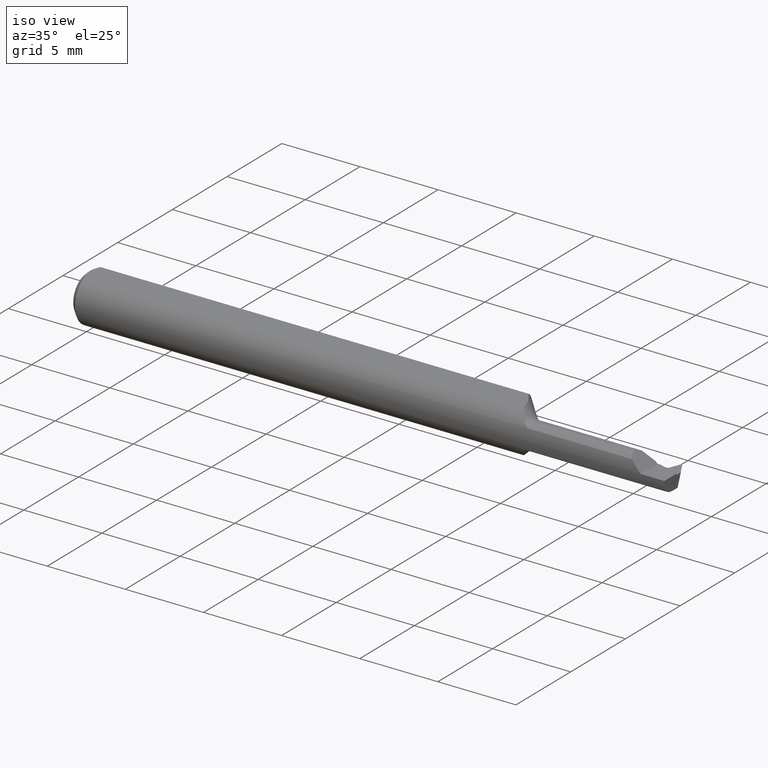
[diagram: clean part render]
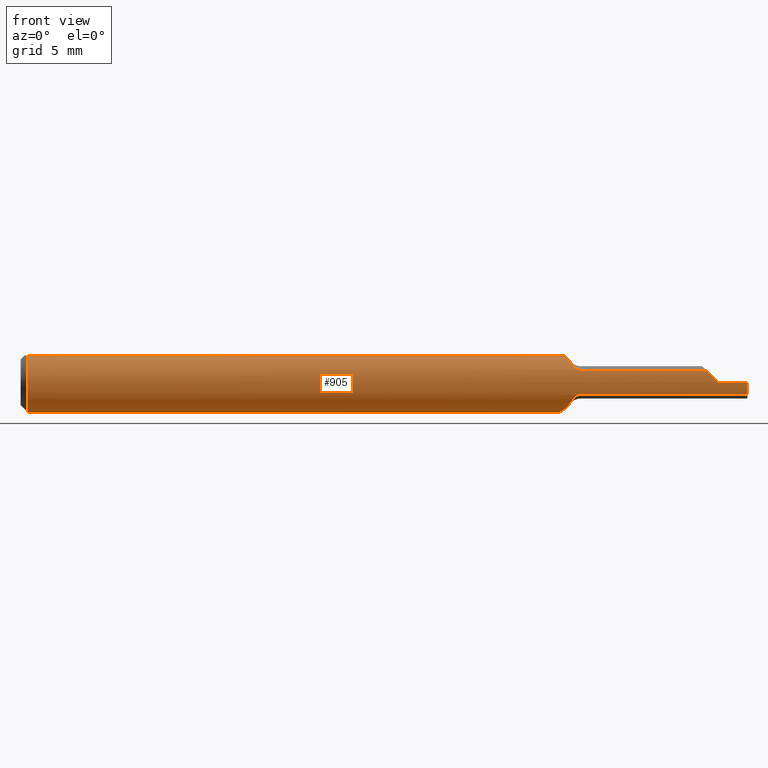
[diagram: tour spotlight — one face highlighted and labeled with its STEP entity id]
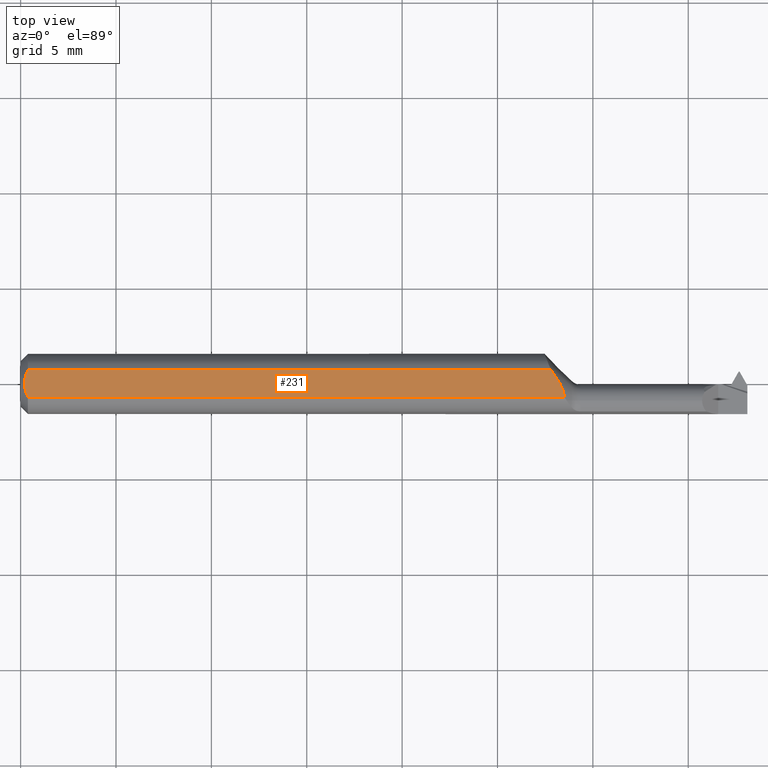
[diagram: tour spotlight — one face highlighted and labeled with its STEP entity id]
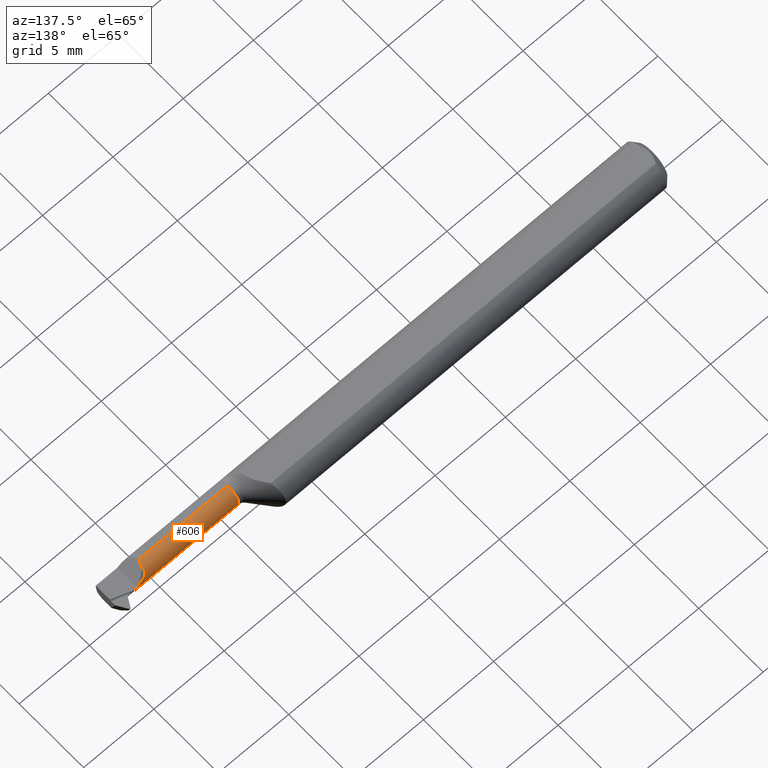
[diagram: tour spotlight — one face highlighted and labeled with its STEP entity id]
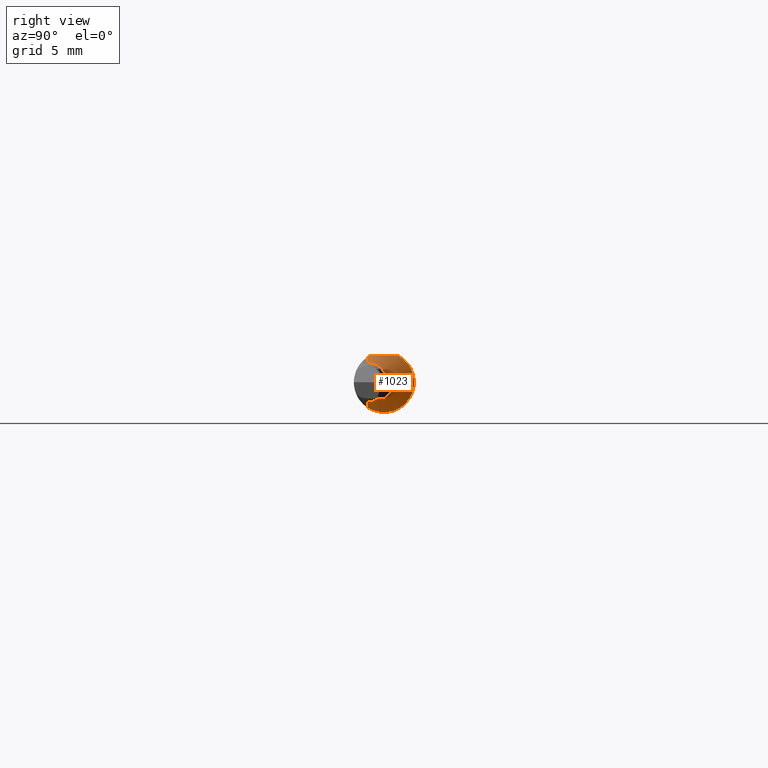
[diagram: tour spotlight — one face highlighted and labeled with its STEP entity id]
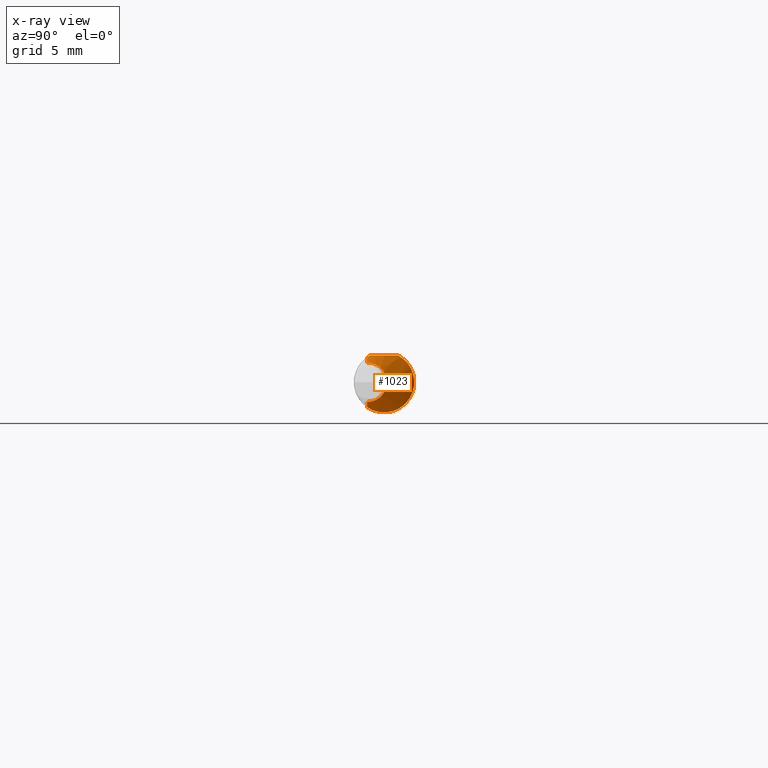
[diagram: x-ray of the same camera — body ghosted, this tour face saturated]
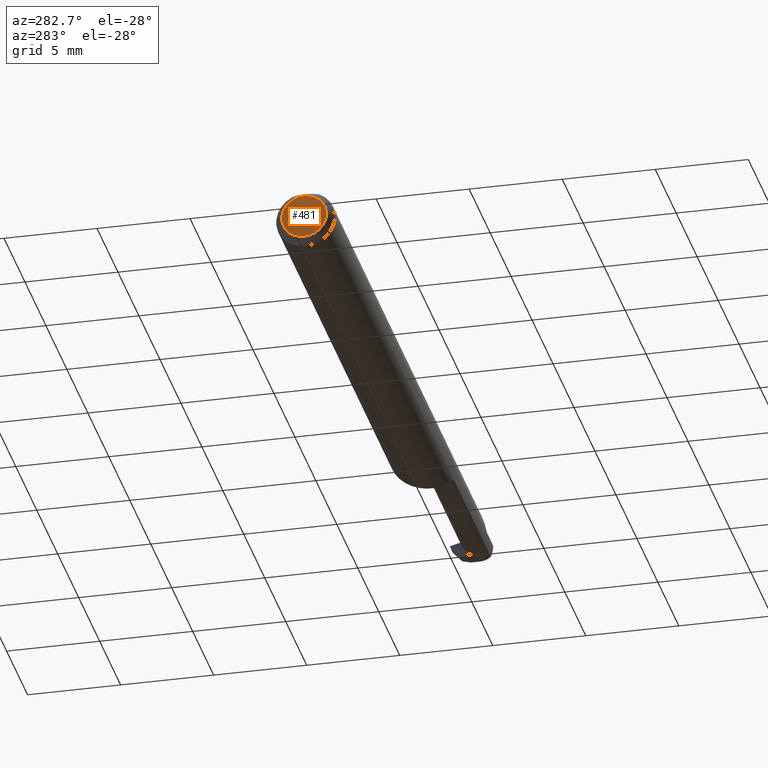
[diagram: tour spotlight — one face highlighted and labeled with its STEP entity id]
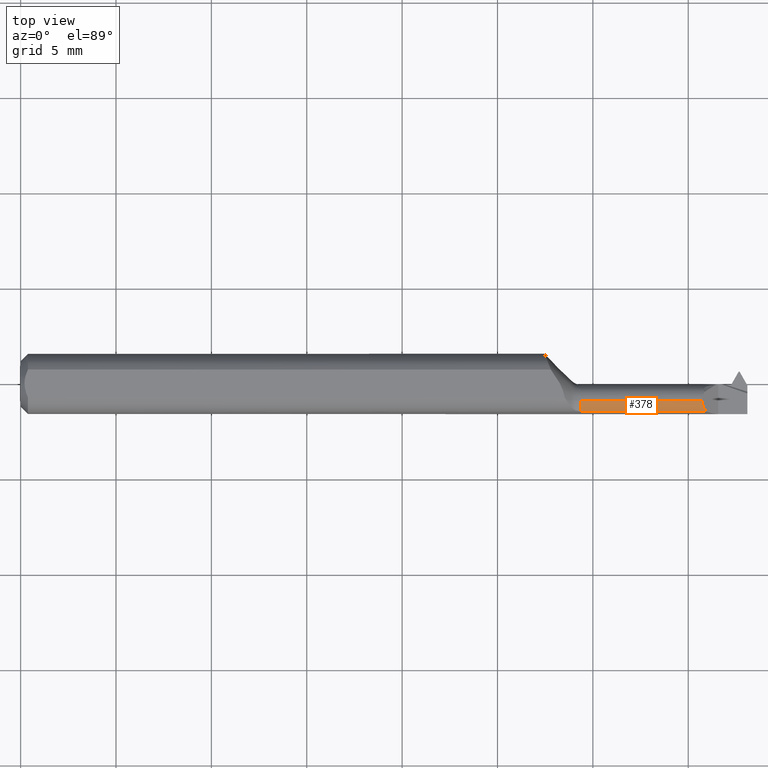
[diagram: tour spotlight — one face highlighted and labeled with its STEP entity id]
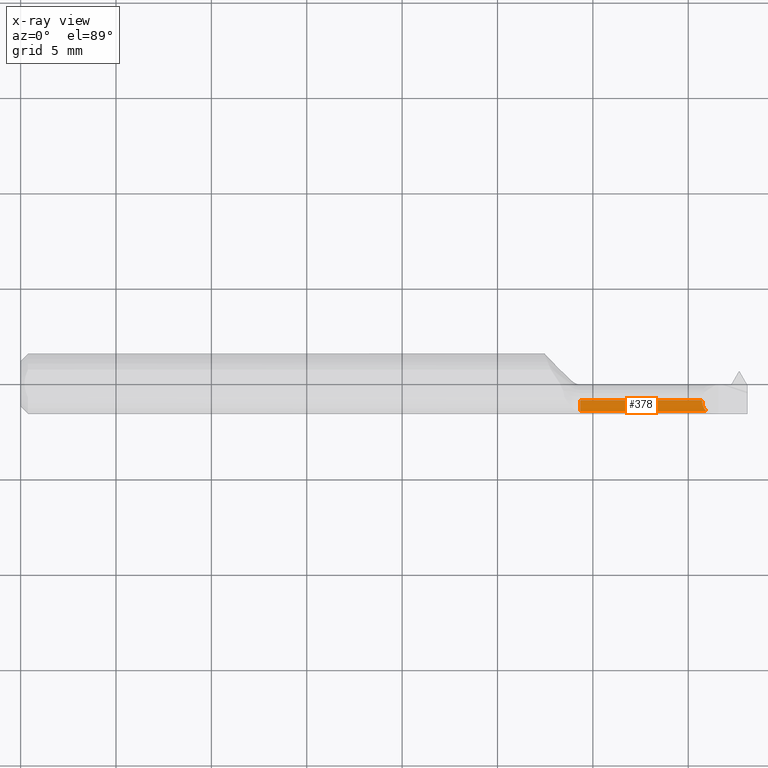
[diagram: x-ray of the same camera — body ghosted, this tour face saturated]
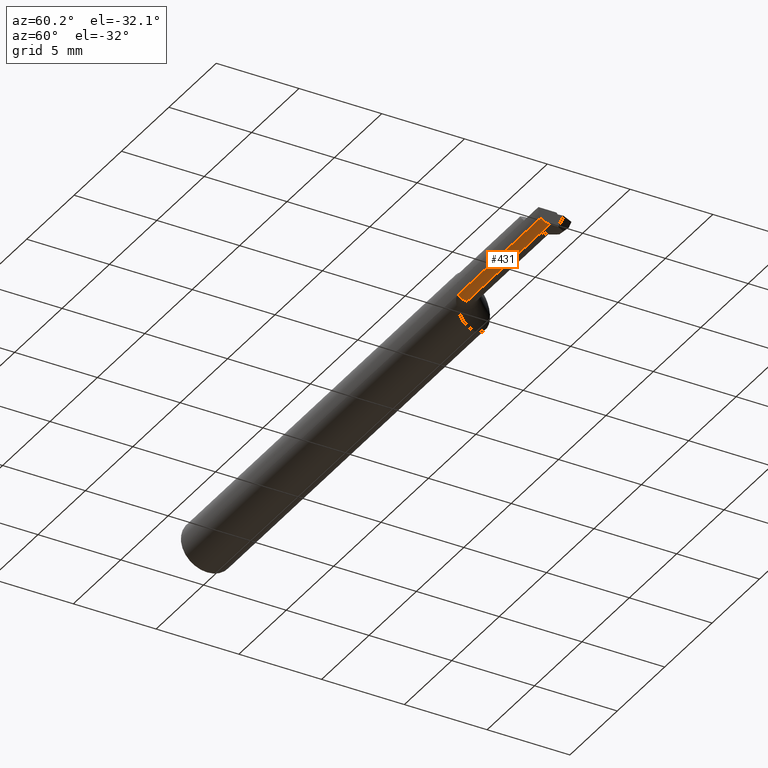
[diagram: tour spotlight — one face highlighted and labeled with its STEP entity id]
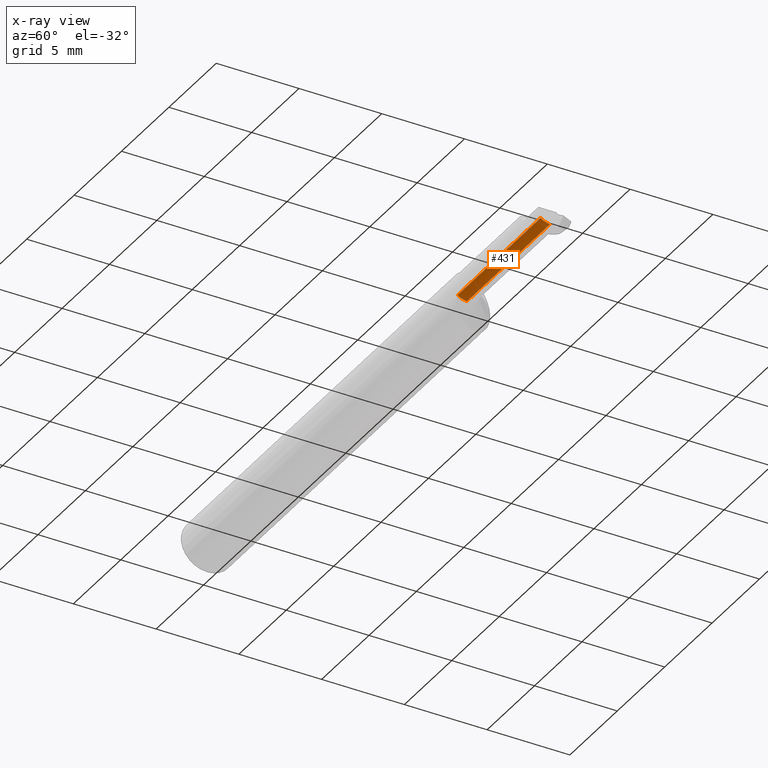
[diagram: x-ray of the same camera — body ghosted, this tour face saturated]
A machine part: a face-by-face anatomy tour. The part has 30 B-rep faces; the first image is the clean iso view, then the 7 largest visible faces are spotlighted one at a time (largest first), each with its STEP entity span.

Face 1 — front view, entity #905. In plain terms, the highlighted cylindrical surface (edge-blend (fillet) strip) has radius 1.5837 mm, axis along (-1, -0, -0).
Definition (entity closure, byte-faithful):
#8 = ORIENTED_EDGE ( 'NONE', *, *, #926, .F. ) ;
#12 = CARTESIAN_POINT ( 'NONE',  ( 1.130470543365756031, -0.04029694397040561177, -0.04802945663424398881 ) ) ;
#14 = CARTESIAN_POINT ( 'NONE',  ( 1.153287141454519604, -0.05709892395982783114, -0.02504466774844096508 ) ) ;
#24 = B_SPLINE_CURVE_WITH_KNOTS ( 'NONE', 3,
 ( #365, #785, #939, #450, #854, #934, #358, #272, #33, #521, #701, #435, #860, #1034, #112, #601, #525, #615, #286, #1015, #440, #695, #279, #203, #775, #928, #865, #189 ),
 .UNSPECIFIED., .F., .F.,
 ( 4, 2, 2, 2, 2, 2, 2, 2, 2, 2, 2, 2, 2, 4 ),
 ( 0.001002805847723925838, 0.001678292390586387517, 0.002353778933448849413, 0.002691522204880079927, 0.003029265476311311309, 0.003367008747742542690, 0.003704752019173773205, 0.004042495290605005454, 0.004380238562036235968, 0.004717981833467468217, 0.005055725104898698731, 0.005731211647761161494, 0.006068954919192392009, 0.006406698190623623390 ),
 .UNSPECIFIED. ) ;
#33 = CARTESIAN_POINT ( 'NONE',  ( 1.093781290666482109, 0.02974405986800976107, -0.05495786792010317473 ) ) ;
#52 = CARTESIAN_POINT ( 'NONE',  ( 1.137677669529663760, -0.04929099476285014186, 0.03818272299468281061 ) ) ;
#54 = VERTEX_POINT ( 'NONE', #628 ) ;
#57 = CARTESIAN_POINT ( 'NONE',  ( 1.151289617429931411, -0.05684572724457163245, 0.02563315131835704197 ) ) ;
#60 = ORIENTED_EDGE ( 'NONE', *, *, #388, .F. ) ;
#73 = VERTEX_POINT ( 'NONE', #215 ) ;
#74 = DIRECTION ( 'NONE',  ( 1.000000000000000000, -0.000000000000000000, -0.000000000000000000 ) ) ;
#75 = DIRECTION ( 'NONE',  ( 0.000000000000000000, 0.000000000000000000, 1.000000000000000000 ) ) ;
#87 = CARTESIAN_POINT ( 'NONE',  ( 1.137677669529663760, -0.04929099476285007941, -0.03818272299468288694 ) ) ;
#91 = EDGE_CURVE ( 'NONE', #173, #602, #412, .T. ) ;
#112 = CARTESIAN_POINT ( 'NONE',  ( 1.083538176232447192, 0.05617421951703601563, -0.02740985032337623500 ) ) ;
#113 = ORIENTED_EDGE ( 'NONE', *, *, #200, .T. ) ;
#123 = CYLINDRICAL_SURFACE ( 'NONE', #603, 0.06235000000000000264 ) ;
#128 = EDGE_CURVE ( 'NONE', #710, #73, #997, .T. ) ;
#134 = CIRCLE ( 'NONE', #389, 0.06235000000000000264 ) ;
#145 = ORIENTED_EDGE ( 'NONE', *, *, #91, .T. ) ;
#149 = CARTESIAN_POINT ( 'NONE',  ( 0.01499999999999943046, 0.02870365830342891042, 0.05534999999999997561 ) ) ;
#153 = CARTESIAN_POINT ( 'NONE',  ( 1.130473219467081014, -0.04030091405033060098, 0.04802678053291906807 ) ) ;
#173 = VERTEX_POINT ( 'NONE', #149 ) ;
#174 = DIRECTION ( 'NONE',  ( -1.000000000000000000, -0.000000000000000000, -0.000000000000000000 ) ) ;
#175 = B_SPLINE_CURVE_WITH_KNOTS ( 'NONE', 3,
 ( #1067, #319, #655, #239 ),
 .UNSPECIFIED., .F., .F.,
 ( 4, 4 ),
 ( 4.900316753891205725E-07, 0.0002069454246930117877 ),
 .UNSPECIFIED. ) ;
#185 = VECTOR ( 'NONE', #896, 39.37007874015748143 ) ;
#189 = CARTESIAN_POINT ( 'NONE',  ( 1.094222541662974946, 0.02870365830342894858, 0.05534999999999997561 ) ) ;
#197 = DIRECTION ( 'NONE',  ( -1.000000000000000000, -0.000000000000000000, -0.000000000000000000 ) ) ;
#200 = EDGE_CURVE ( 'NONE', #830, #367, #454, .T. ) ;
#203 = CARTESIAN_POINT ( 'NONE',  ( 1.087461577004688928, 0.04569415614957453992, 0.04264187219588765065 ) ) ;
#215 = CARTESIAN_POINT ( 'NONE',  ( 1.415105332251558545, -0.05709892395982783114, 0.02504466774844096161 ) ) ;
#217 = CARTESIAN_POINT ( 'NONE',  ( 0.01499999999999943046, 0.000000000000000000, 0.000000000000000000 ) ) ;
#224 = CARTESIAN_POINT ( 'NONE',  ( 1.146131924071832620, -0.05541942631471465097, 0.02860578849316412417 ) ) ;
#233 = CARTESIAN_POINT ( 'NONE',  ( 1.155355339059327413, -0.05709892395982783114, -0.02504466774844097895 ) ) ;
#239 = CARTESIAN_POINT ( 'NONE',  ( 1.126798936181157673, -0.03484999999999996434, 0.05170106381884227720 ) ) ;
#246 = VERTEX_POINT ( 'NONE', #278 ) ;
#253 = ORIENTED_EDGE ( 'NONE', *, *, #732, .F. ) ;
#271 = CARTESIAN_POINT ( 'NONE',  ( 1.137677669529663760, -0.04929099476285007941, -0.03818272299468288694 ) ) ;
#272 = CARTESIAN_POINT ( 'NONE',  ( 1.095319167939295735, 0.02602957428028411860, -0.05680820791781664852 ) ) ;
#278 = CARTESIAN_POINT ( 'NONE',  ( 1.126798936181157673, -0.03484999999999996434, -0.05170106381884229108 ) ) ;
#279 = CARTESIAN_POINT ( 'NONE',  ( 1.084363028855981348, 0.05388030451619357786, 0.03254974604521739673 ) ) ;
#281 = EDGE_CURVE ( 'NONE', #800, #367, #1005, .T. ) ;
#286 = CARTESIAN_POINT ( 'NONE',  ( 1.081251588986019030, 0.06248498650672722893, -0.001709963322147688624 ) ) ;
#295 = CARTESIAN_POINT ( 'NONE',  ( 1.304999999999999938, -0.05709892395982783114, 0.02504466774844097895 ) ) ;
#300 = EDGE_CURVE ( 'NONE', #346, #710, #722, .T. ) ;
#312 = ORIENTED_EDGE ( 'NONE', *, *, #804, .T. ) ;
#313 = CARTESIAN_POINT ( 'NONE',  ( 1.151289707626369063, -0.05684699673957825661, -0.02563077818084355877 ) ) ;
#314 = CARTESIAN_POINT ( 'NONE',  ( 1.134162485072288007, -0.04517340447351937682, 0.04349821925761904184 ) ) ;
#319 = CARTESIAN_POINT ( 'NONE',  ( 1.124144492279592233, -0.03083651683282654168, 0.05424393238595510286 ) ) ;
#327 = B_SPLINE_CURVE_WITH_KNOTS ( 'NONE', 3,
 ( #271, #605, #12, #675 ),
 .UNSPECIFIED., .F., .F.,
 ( 4, 4 ),
 ( 0.0004304453543963087433, 0.001002805847723925838 ),
 .UNSPECIFIED. ) ;
#346 = VERTEX_POINT ( 'NONE', #817 ) ;
#350 = VECTOR ( 'NONE', #197, 39.37007874015748143 ) ;
#358 = CARTESIAN_POINT ( 'NONE',  ( 1.098632471411509881, 0.01827880384301220837, -0.05975446890497311536 ) ) ;
#365 = CARTESIAN_POINT ( 'NONE',  ( 1.126798936181157673, -0.03484999999999996434, -0.05170106381884229108 ) ) ;
#367 = VERTEX_POINT ( 'NONE', #998 ) ;
#369 = VECTOR ( 'NONE', #613, 39.37007874015748143 ) ;
#388 = EDGE_CURVE ( 'NONE', #1016, #800, #175, .T. ) ;
#389 = AXIS2_PLACEMENT_3D ( 'NONE', #217, #74, #395 ) ;
#395 = DIRECTION ( 'NONE',  ( 0.000000000000000000, 0.000000000000000000, -1.000000000000000000 ) ) ;
#401 = CARTESIAN_POINT ( 'NONE',  ( 0.01499999999999943046, 0.000000000000000000, 0.000000000000000000 ) ) ;
#405 = CARTESIAN_POINT ( 'NONE',  ( 1.431398598984598980, -0.06232912648111771370, 0.008751401015400844460 ) ) ;
#407 = DIRECTION ( 'NONE',  ( 1.000000000000000000, 0.000000000000000000, 0.000000000000000000 ) ) ;
#410 = CIRCLE ( 'NONE', #636, 0.06235000000000000264 ) ;
#412 = LINE ( 'NONE', #747, #185 ) ;
#422 = ORIENTED_EDGE ( 'NONE', *, *, #749, .T. ) ;
#435 = CARTESIAN_POINT ( 'NONE',  ( 1.087186061783834923, 0.04640985502607388596, -0.04185753571937080725 ) ) ;
#439 = B_SPLINE_CURVE_WITH_KNOTS ( 'NONE', 3,
 ( #87, #826, #973, #566, #985, #313, #14, #233 ),
 .UNSPECIFIED., .F., .F.,
 ( 4, 2, 2, 4 ),
 ( 1.084202172485504434E-19, 0.0003078720931505792599, 0.0004618081397258722780, 0.0006157441863011653502 ),
 .UNSPECIFIED. ) ;
#440 = CARTESIAN_POINT ( 'NONE',  ( 1.081637028212544038, 0.06140922352331504991, 0.01166362898282090506 ) ) ;
#448 = LINE ( 'NONE', #698, #369 ) ;
#450 = CARTESIAN_POINT ( 'NONE',  ( 1.109847728078469764, -0.005824560654604024092, -0.06256950162644808744 ) ) ;
#454 = B_SPLINE_CURVE_WITH_KNOTS ( 'NONE', 3,
 ( #463, #1044, #57, #797, #224, #968, #632, #52 ),
 .UNSPECIFIED., .F., .F.,
 ( 4, 2, 2, 4 ),
 ( 0.000000000000000000, 0.0001549442367247569970, 0.0003098884734495139940, 0.0006197769468990209406 ),
 .UNSPECIFIED. ) ;
#457 = ORIENTED_EDGE ( 'NONE', *, *, #574, .F. ) ;
#463 = CARTESIAN_POINT ( 'NONE',  ( 1.155355339059327413, -0.05709892395982783114, 0.02504466774844097895 ) ) ;
#467 = CARTESIAN_POINT ( 'NONE',  ( 1.499999999999999778, -0.06235000000000000264, -6.429183357567480113E-17 ) ) ;
#471 = ORIENTED_EDGE ( 'NONE', *, *, #657, .T. ) ;
#495 = DIRECTION ( 'NONE',  ( 0.000000000000000000, 0.000000000000000000, -1.000000000000000000 ) ) ;
#518 = ORIENTED_EDGE ( 'NONE', *, *, #128, .T. ) ;
#521 = CARTESIAN_POINT ( 'NONE',  ( 1.090915116675357677, 0.03682945550436711457, -0.05048432975693645242 ) ) ;
#525 = CARTESIAN_POINT ( 'NONE',  ( 1.081897901225659986, 0.06068644917182054732, -0.01499466837903941883 ) ) ;
#536 = EDGE_CURVE ( 'NONE', #560, #940, #850, .T. ) ;
#555 = CARTESIAN_POINT ( 'NONE',  ( 1.094222541662974946, 0.02870365830342894858, 0.05534999999999997561 ) ) ;
#560 = VERTEX_POINT ( 'NONE', #669 ) ;
#566 = CARTESIAN_POINT ( 'NONE',  ( 1.146111224220241365, -0.05541224241096041891, -0.02862053157995761779 ) ) ;
#568 = CARTESIAN_POINT ( 'NONE',  ( 1.137677669529663760, -0.04929099476285014186, 0.03818272299468281061 ) ) ;
#574 = EDGE_CURVE ( 'NONE', #916, #246, #327, .T. ) ;
#583 = ORIENTED_EDGE ( 'NONE', *, *, #864, .T. ) ;
#600 = VECTOR ( 'NONE', #960, 39.37007874015748143 ) ;
#601 = CARTESIAN_POINT ( 'NONE',  ( 1.082338388047116684, 0.05946414261771252457, -0.01925768874601466174 ) ) ;
#602 = VERTEX_POINT ( 'NONE', #555 ) ;
#603 = AXIS2_PLACEMENT_3D ( 'NONE', #607, #1028, #942 ) ;
#605 = CARTESIAN_POINT ( 'NONE',  ( 1.134189929053991408, -0.04520555159806784185, -0.04345671976194449837 ) ) ;
#607 = CARTESIAN_POINT ( 'NONE',  ( 1.499999999999999778, 0.000000000000000000, 0.000000000000000000 ) ) ;
#611 = CARTESIAN_POINT ( 'NONE',  ( 1.155355339059327413, -0.05709892395982783114, -0.02504466774844097895 ) ) ;
#613 = DIRECTION ( 'NONE',  ( -1.000000000000000000, -0.000000000000000000, -0.000000000000000000 ) ) ;
#615 = CARTESIAN_POINT ( 'NONE',  ( 1.081350250491878162, 0.06220880701806728863, -0.006144063986498401152 ) ) ;
#628 = CARTESIAN_POINT ( 'NONE',  ( 0.01499999999999943393, -0.02870365830342891042, 0.05534999999999997561 ) ) ;
#632 = CARTESIAN_POINT ( 'NONE',  ( 1.139572434384208410, -0.05151047014465207075, 0.03531754888345173954 ) ) ;
#636 = AXIS2_PLACEMENT_3D ( 'NONE', #653, #407, #495 ) ;
#645 = CARTESIAN_POINT ( 'NONE',  ( 1.439999999999999947, -0.06234981956669986836, 0.0001500000000000044050 ) ) ;
#651 = EDGE_CURVE ( 'NONE', #855, #346, #802, .T. ) ;
#653 = CARTESIAN_POINT ( 'NONE',  ( 1.499999999999999778, 0.000000000000000000, 0.000000000000000000 ) ) ;
#655 = CARTESIAN_POINT ( 'NONE',  ( 1.125473913847307994, -0.03288428797004991355, 0.05302608615269207432 ) ) ;
#657 = EDGE_CURVE ( 'NONE', #1016, #54, #448, .T. ) ;
#662 = CARTESIAN_POINT ( 'NONE',  ( 1.499999999999999778, -0.06234999999999984999, -6.429183357567480113E-17 ) ) ;
#669 = CARTESIAN_POINT ( 'NONE',  ( 1.499999999999999778, -0.05709892395982781726, -0.02504466774844100324 ) ) ;
#675 = CARTESIAN_POINT ( 'NONE',  ( 1.126798936181157673, -0.03484999999999996434, -0.05170106381884229108 ) ) ;
#691 = CARTESIAN_POINT ( 'NONE',  ( 1.304999999999999938, -0.05709892395982783114, -0.02504466774844097895 ) ) ;
#695 = CARTESIAN_POINT ( 'NONE',  ( 1.082864552266177283, 0.05801182449869077967, 0.02450699119587121041 ) ) ;
#698 = CARTESIAN_POINT ( 'NONE',  ( 1.499999999999999778, -0.02870365830342891042, 0.05534999999999997561 ) ) ;
#701 = CARTESIAN_POINT ( 'NONE',  ( 1.089572202792424394, 0.04023937875126798458, -0.04781966475992485699 ) ) ;
#710 = VERTEX_POINT ( 'NONE', #782 ) ;
#712 = LINE ( 'NONE', #295, #600 ) ;
#722 = CIRCLE ( 'NONE', #1001, 0.06235000000000000264 ) ;
#732 = EDGE_CURVE ( 'NONE', #830, #73, #712, .T. ) ;
#736 = DIRECTION ( 'NONE',  ( 1.000000000000000000, -0.000000000000000000, -0.000000000000000000 ) ) ;
#742 = CARTESIAN_POINT ( 'NONE',  ( 1.155355339059327413, -0.05709892395982783114, 0.02504466774844097895 ) ) ;
#747 = CARTESIAN_POINT ( 'NONE',  ( 1.499999999999999778, 0.02870365830342891042, 0.05534999999999997561 ) ) ;
#749 = EDGE_CURVE ( 'NONE', #54, #1042, #134, .T. ) ;
#754 = EDGE_CURVE ( 'NONE', #855, #560, #410, .T. ) ;
#757 = CIRCLE ( 'NONE', #899, 0.06235000000000000264 ) ;
#765 = ORIENTED_EDGE ( 'NONE', *, *, #536, .F. ) ;
#775 = CARTESIAN_POINT ( 'NONE',  ( 1.088653169323771541, 0.04259278029609214755, 0.04573275696660700218 ) ) ;
#782 = CARTESIAN_POINT ( 'NONE',  ( 1.439999999999999947, -0.06234981956669986836, 0.0001500000000000044050 ) ) ;
#785 = CARTESIAN_POINT ( 'NONE',  ( 1.122465790772301242, -0.02842164340546326357, -0.05603420922769860452 ) ) ;
#797 = CARTESIAN_POINT ( 'NONE',  ( 1.147732404752181745, -0.05600657852987831614, 0.02741821135396315876 ) ) ;
#800 = VERTEX_POINT ( 'NONE', #831 ) ;
#802 = LINE ( 'NONE', #467, #1002 ) ;
#804 = EDGE_CURVE ( 'NONE', #916, #940, #439, .T. ) ;
#817 = CARTESIAN_POINT ( 'NONE',  ( 1.439999999999999947, -0.06234999999999999570, -6.429183357567478880E-17 ) ) ;
#818 = CARTESIAN_POINT ( 'NONE',  ( 1.122809785273793270, -0.02870365830342887919, 0.05534999999999997561 ) ) ;
#822 = CARTESIAN_POINT ( 'NONE',  ( 1.126798936181157673, -0.03484999999999996434, 0.05170106381884227720 ) ) ;
#826 = CARTESIAN_POINT ( 'NONE',  ( 1.139573010478363013, -0.05151114496548366006, -0.03531667774102217189 ) ) ;
#830 = VERTEX_POINT ( 'NONE', #742 ) ;
#831 = CARTESIAN_POINT ( 'NONE',  ( 1.126798936181157673, -0.03484999999999996434, 0.05170106381884227720 ) ) ;
#836 = ORIENTED_EDGE ( 'NONE', *, *, #300, .T. ) ;
#847 = FACE_OUTER_BOUND ( 'NONE', #1072, .T. ) ;
#850 = LINE ( 'NONE', #691, #350 ) ;
#854 = CARTESIAN_POINT ( 'NONE',  ( 1.105845747007404345, 0.002344214144540653598, -0.06282573183265349748 ) ) ;
#855 = VERTEX_POINT ( 'NONE', #662 ) ;
#860 = CARTESIAN_POINT ( 'NONE',  ( 1.086137264450718787, 0.04918216812935578830, -0.03856953760099160466 ) ) ;
#864 = EDGE_CURVE ( 'NONE', #1042, #173, #757, .T. ) ;
#865 = CARTESIAN_POINT ( 'NONE',  ( 1.092672192774691409, 0.03245285382251589940, 0.05340572489444224413 ) ) ;
#896 = DIRECTION ( 'NONE',  ( 1.000000000000000000, 0.000000000000000000, 0.000000000000000000 ) ) ;
#899 = AXIS2_PLACEMENT_3D ( 'NONE', #401, #736, #1066 ) ;
#905 = ADVANCED_FACE ( 'NONE', ( #847 ), #123, .T. ) ;
#906 = CARTESIAN_POINT ( 'NONE',  ( 1.422982351719128680, -0.06055393364708713116, 0.01716764828087114642 ) ) ;
#907 = ORIENTED_EDGE ( 'NONE', *, *, #754, .F. ) ;
#916 = VERTEX_POINT ( 'NONE', #1020 ) ;
#920 = CARTESIAN_POINT ( 'NONE',  ( 1.439999999999999947, 0.000000000000000000, 0.000000000000000000 ) ) ;
#925 = ORIENTED_EDGE ( 'NONE', *, *, #281, .F. ) ;
#926 = EDGE_CURVE ( 'NONE', #246, #602, #24, .T. ) ;
#928 = CARTESIAN_POINT ( 'NONE',  ( 1.091254089103591118, 0.03598440132308309419, 0.05109552675662727000 ) ) ;
#934 = CARTESIAN_POINT ( 'NONE',  ( 1.100395201889299068, 0.01427566068728819762, -0.06082753790025866719 ) ) ;
#939 = CARTESIAN_POINT ( 'NONE',  ( 1.118108797649331576, -0.02111921085013268584, -0.05918485425908293074 ) ) ;
#940 = VERTEX_POINT ( 'NONE', #611 ) ;
#942 = DIRECTION ( 'NONE',  ( 0.000000000000000000, 0.000000000000000000, 1.000000000000000000 ) ) ;
#960 = DIRECTION ( 'NONE',  ( 1.000000000000000000, 0.000000000000000000, 0.000000000000000000 ) ) ;
#968 = CARTESIAN_POINT ( 'NONE',  ( 1.141854265633651444, -0.05334578280838294523, 0.03240487231932481088 ) ) ;
#973 = CARTESIAN_POINT ( 'NONE',  ( 1.141798722588554638, -0.05331305935413725716, -0.03246160732347995459 ) ) ;
#977 = CARTESIAN_POINT ( 'NONE',  ( 1.415105332251558545, -0.05709892395982783114, 0.02504466774844096161 ) ) ;
#985 = CARTESIAN_POINT ( 'NONE',  ( 1.147700824149352039, -0.05599786942889750652, -0.02743640734296994357 ) ) ;
#997 =( BOUNDED_CURVE ( )  B_SPLINE_CURVE ( 3, ( #645, #405, #906, #977 ),
 .UNSPECIFIED., .F., .T. ) 
 B_SPLINE_CURVE_WITH_KNOTS ( ( 4, 4 ),
 ( 4.714794756562621814, 5.125738186074483060 ),
 .UNSPECIFIED. ) 
 CURVE ( )  GEOMETRIC_REPRESENTATION_ITEM ( )  RATIONAL_B_SPLINE_CURVE ( ( 1.000000000000000000, 0.9859765666414223029, 0.9859765666414223029, 1.000000000000000000 ) ) 
 REPRESENTATION_ITEM ( '' )  );
#998 = CARTESIAN_POINT ( 'NONE',  ( 1.137677669529663760, -0.04929099476285014186, 0.03818272299468281061 ) ) ;
#1001 = AXIS2_PLACEMENT_3D ( 'NONE', #920, #174, #75 ) ;
#1002 = VECTOR ( 'NONE', #1038, 39.37007874015748143 ) ;
#1005 = B_SPLINE_CURVE_WITH_KNOTS ( 'NONE', 3,
 ( #822, #153, #314, #568 ),
 .UNSPECIFIED., .F., .F.,
 ( 4, 4 ),
 ( 0.0002069454246930117877, 0.0007794456614621397567 ),
 .UNSPECIFIED. ) ;
#1015 = CARTESIAN_POINT ( 'NONE',  ( 1.081391377759592487, 0.06209518835301121309, 0.007175311610866447892 ) ) ;
#1016 = VERTEX_POINT ( 'NONE', #818 ) ;
#1020 = CARTESIAN_POINT ( 'NONE',  ( 1.137677669529663760, -0.04929099476285007941, -0.03818272299468288694 ) ) ;
#1028 = DIRECTION ( 'NONE',  ( -1.000000000000000000, -0.000000000000000000, -0.000000000000000000 ) ) ;
#1034 = CARTESIAN_POINT ( 'NONE',  ( 1.084312107437907180, 0.05406716364071832703, -0.03135660550037761701 ) ) ;
#1038 = DIRECTION ( 'NONE',  ( -1.000000000000000000, -0.000000000000000000, -0.000000000000000000 ) ) ;
#1042 = VERTEX_POINT ( 'NONE', #1045 ) ;
#1044 = CARTESIAN_POINT ( 'NONE',  ( 1.153286779105812787, -0.05709892395982781033, 0.02504466774844096855 ) ) ;
#1045 = CARTESIAN_POINT ( 'NONE',  ( 0.01499999999999943046, 0.000000000000000000, -0.06235000000000000264 ) ) ;
#1046 = ORIENTED_EDGE ( 'NONE', *, *, #651, .T. ) ;
#1066 = DIRECTION ( 'NONE',  ( 0.000000000000000000, 0.000000000000000000, -1.000000000000000000 ) ) ;
#1067 = CARTESIAN_POINT ( 'NONE',  ( 1.122809785273793270, -0.02870365830342887919, 0.05534999999999997561 ) ) ;
#1072 = EDGE_LOOP ( 'NONE', ( #765, #907, #1046, #836, #518, #253, #113, #925, #60, #471, #422, #583, #145, #8, #457, #312 ) ) ;

Face 2 — top view, entity #231. In plain terms, the highlighted planar face has unit normal (-0, 0, -1).
Definition (entity closure, byte-faithful):
#4 = ORIENTED_EDGE ( 'NONE', *, *, #178, .T. ) ;
#40 = B_SPLINE_CURVE_WITH_KNOTS ( 'NONE', 3,
 ( #543, #285, #951, #209, #455, #538 ),
 .UNSPECIFIED., .F., .F.,
 ( 4, 2, 4 ),
 ( 0.0009891891268780975653, 0.001363759147637763538, 0.001738329168397429510 ),
 .UNSPECIFIED. ) ;
#54 = VERTEX_POINT ( 'NONE', #628 ) ;
#91 = EDGE_CURVE ( 'NONE', #173, #602, #412, .T. ) ;
#149 = CARTESIAN_POINT ( 'NONE',  ( 0.01499999999999943046, 0.02870365830342891042, 0.05534999999999997561 ) ) ;
#169 = CARTESIAN_POINT ( 'NONE',  ( 0.01293229606224332445, -0.02421219804577847898, 0.05534999999999998255 ) ) ;
#173 = VERTEX_POINT ( 'NONE', #149 ) ;
#178 = EDGE_CURVE ( 'NONE', #173, #181, #40, .T. ) ;
#181 = VERTEX_POINT ( 'NONE', #213 ) ;
#185 = VECTOR ( 'NONE', #896, 39.37007874015748143 ) ;
#202 = CARTESIAN_POINT ( 'NONE',  ( 1.106933172365748730, 0.01118833028477126366, 0.05534999999999997561 ) ) ;
#209 = CARTESIAN_POINT ( 'NONE',  ( 0.008690002085521208661, 0.009916139514497459423, 0.05534999999999997561 ) ) ;
#213 = CARTESIAN_POINT ( 'NONE',  ( 0.007999999999999490158, -4.651964048606909505E-17, 0.05534999999999997561 ) ) ;
#231 = ADVANCED_FACE ( 'NONE', ( #708 ), #473, .F. ) ;
#261 = EDGE_CURVE ( 'NONE', #602, #1016, #576, .T. ) ;
#285 = CARTESIAN_POINT ( 'NONE',  ( 0.01293485069452588419, 0.02421774721031868388, 0.05534999999999998255 ) ) ;
#290 = CARTESIAN_POINT ( 'NONE',  ( 1.094222541662974946, 0.02870365830342894858, 0.05534999999999997561 ) ) ;
#309 = CARTESIAN_POINT ( 'NONE',  ( 0.01115060403343443897, -0.01949719534315692143, 0.05534999999999997561 ) ) ;
#368 = AXIS2_PLACEMENT_3D ( 'NONE', #377, #810, #713 ) ;
#369 = VECTOR ( 'NONE', #613, 39.37007874015748143 ) ;
#377 = CARTESIAN_POINT ( 'NONE',  ( 0.000000000000000000, 0.1749999999999999889, 0.05534999999999997561 ) ) ;
#383 = CARTESIAN_POINT ( 'NONE',  ( 1.122214503573503386, -0.02330998392795123261, 0.05534999999999998255 ) ) ;
#412 = LINE ( 'NONE', #747, #185 ) ;
#427 = CARTESIAN_POINT ( 'NONE',  ( 0.007999999999999490158, -4.651964048606909505E-17, 0.05534999999999997561 ) ) ;
#448 = LINE ( 'NONE', #698, #369 ) ;
#455 = CARTESIAN_POINT ( 'NONE',  ( 0.007999999999999483219, 0.005019298118353928383, 0.05534999999999996173 ) ) ;
#473 = PLANE ( 'NONE',  #368 ) ;
#490 = CARTESIAN_POINT ( 'NONE',  ( 0.007999999999999491893, -0.005022070041391882983, 0.05534999999999997561 ) ) ;
#538 = CARTESIAN_POINT ( 'NONE',  ( 0.007999999999999490158, -4.651964048606909505E-17, 0.05534999999999997561 ) ) ;
#543 = CARTESIAN_POINT ( 'NONE',  ( 0.01499999999999943046, 0.02870365830342891042, 0.05534999999999997561 ) ) ;
#550 = CARTESIAN_POINT ( 'NONE',  ( 1.120805865593285322, -0.01790049261982879295, 0.05534999999999997561 ) ) ;
#555 = CARTESIAN_POINT ( 'NONE',  ( 1.094222541662974946, 0.02870365830342894858, 0.05534999999999997561 ) ) ;
#576 = B_SPLINE_CURVE_WITH_KNOTS ( 'NONE', 3,
 ( #290, #946, #202, #961, #626, #550, #383, #885 ),
 .UNSPECIFIED., .F., .F.,
 ( 4, 2, 2, 4 ),
 ( 0.004263475030327939889, 0.005088026700607271684, 0.005500302535746937581, 0.005912578370886602611 ),
 .UNSPECIFIED. ) ;
#602 = VERTEX_POINT ( 'NONE', #555 ) ;
#613 = DIRECTION ( 'NONE',  ( -1.000000000000000000, -0.000000000000000000, -0.000000000000000000 ) ) ;
#626 = CARTESIAN_POINT ( 'NONE',  ( 1.117046942850684621, -0.007736333916501985167, 0.05534999999999998255 ) ) ;
#628 = CARTESIAN_POINT ( 'NONE',  ( 0.01499999999999943393, -0.02870365830342891042, 0.05534999999999997561 ) ) ;
#657 = EDGE_CURVE ( 'NONE', #1016, #54, #448, .T. ) ;
#693 = ORIENTED_EDGE ( 'NONE', *, *, #91, .F. ) ;
#698 = CARTESIAN_POINT ( 'NONE',  ( 1.499999999999999778, -0.02870365830342891042, 0.05534999999999997561 ) ) ;
#708 = FACE_OUTER_BOUND ( 'NONE', #814, .T. ) ;
#713 = DIRECTION ( 'NONE',  ( -1.000000000000000000, 0.000000000000000000, 0.000000000000000000 ) ) ;
#747 = CARTESIAN_POINT ( 'NONE',  ( 1.499999999999999778, 0.02870365830342891042, 0.05534999999999997561 ) ) ;
#759 = CARTESIAN_POINT ( 'NONE',  ( 0.01499999999999943393, -0.02870365830342891042, 0.05534999999999997561 ) ) ;
#770 = ORIENTED_EDGE ( 'NONE', *, *, #261, .F. ) ;
#777 = EDGE_CURVE ( 'NONE', #181, #54, #1024, .T. ) ;
#810 = DIRECTION ( 'NONE',  ( -0.000000000000000000, 0.000000000000000000, -1.000000000000000000 ) ) ;
#814 = EDGE_LOOP ( 'NONE', ( #770, #693, #4, #978, #1041 ) ) ;
#818 = CARTESIAN_POINT ( 'NONE',  ( 1.122809785273793270, -0.02870365830342887919, 0.05534999999999997561 ) ) ;
#885 = CARTESIAN_POINT ( 'NONE',  ( 1.122809785273793270, -0.02870365830342887919, 0.05534999999999997561 ) ) ;
#896 = DIRECTION ( 'NONE',  ( 1.000000000000000000, 0.000000000000000000, 0.000000000000000000 ) ) ;
#946 = CARTESIAN_POINT ( 'NONE',  ( 1.100741801716528467, 0.02005857504278606845, 0.05534999999999998255 ) ) ;
#951 = CARTESIAN_POINT ( 'NONE',  ( 0.01115300221660648315, 0.01950510849705851604, 0.05534999999999998949 ) ) ;
#961 = CARTESIAN_POINT ( 'NONE',  ( 1.114711095295458643, -0.002901029001705648491, 0.05534999999999997561 ) ) ;
#978 = ORIENTED_EDGE ( 'NONE', *, *, #777, .T. ) ;
#1016 = VERTEX_POINT ( 'NONE', #818 ) ;
#1024 = B_SPLINE_CURVE_WITH_KNOTS ( 'NONE', 3,
 ( #427, #490, #1074, #309, #169, #759 ),
 .UNSPECIFIED., .F., .F.,
 ( 4, 2, 4 ),
 ( 0.001738329168397429510, 0.002113106046619105290, 0.002487882924840781503 ),
 .UNSPECIFIED. ) ;
#1041 = ORIENTED_EDGE ( 'NONE', *, *, #657, .F. ) ;
#1074 = CARTESIAN_POINT ( 'NONE',  ( 0.008689995748020552455, -0.009914689980563684904, 0.05534999999999998949 ) ) ;

Face 3 — auxiliary view, entity #606. In plain terms, the highlighted cylindrical surface (edge-blend (fillet) strip) has radius 0.8509 mm, axis along (-1, -0, -0).
Definition (entity closure, byte-faithful):
#1 = CARTESIAN_POINT ( 'NONE',  ( 1.452519061362551156, -0.001379981414702326692, -0.001609003046591364573 ) ) ;
#13 = EDGE_CURVE ( 'NONE', #949, #164, #807, .T. ) ;
#29 =( BOUNDED_CURVE ( )  B_SPLINE_CURVE ( 3, ( #32, #444, #370, #883 ),
 .UNSPECIFIED., .F., .T. ) 
 B_SPLINE_CURVE_WITH_KNOTS ( ( 4, 4 ),
 ( 1.243502364387141457, 1.500010344075241031 ),
 .UNSPECIFIED. ) 
 CURVE ( )  GEOMETRIC_REPRESENTATION_ITEM ( )  RATIONAL_B_SPLINE_CURVE ( ( 1.000000000000000000, 0.9945244831440060995, 0.9945244831440060995, 1.000000000000000000 ) ) 
 REPRESENTATION_ITEM ( '' )  );
#30 = CARTESIAN_POINT ( 'NONE',  ( 1.464999999999999858, -0.01342473220660539597, -0.02575282314584807081 ) ) ;
#32 = CARTESIAN_POINT ( 'NONE',  ( 1.460906593865790359, -0.003128322331008514656, -0.01076964093480404540 ) ) ;
#38 = CARTESIAN_POINT ( 'NONE',  ( 1.460906593865790359, -0.003128322331008514656, -0.01076964093480404540 ) ) ;
#39 = EDGE_CURVE ( 'NONE', #446, #164, #670, .T. ) ;
#44 = VECTOR ( 'NONE', #366, 39.37007874015748143 ) ;
#45 = CARTESIAN_POINT ( 'NONE',  ( 1.155355339059327413, -0.03485000000000001291, 0.03350000000000000200 ) ) ;
#51 = LINE ( 'NONE', #303, #859 ) ;
#70 = CARTESIAN_POINT ( 'NONE',  ( 1.464999999999999858, -0.03485000000000001291, 0.000000000000000000 ) ) ;
#72 = CARTESIAN_POINT ( 'NONE',  ( 1.467844347833569207, -0.005126477316836955053, -0.01665515083962315970 ) ) ;
#77 = CARTESIAN_POINT ( 'NONE',  ( 1.410056993794434277, -0.01042804036218929371, 0.02298827791487850075 ) ) ;
#83 = AXIS2_PLACEMENT_3D ( 'NONE', #70, #234, #904 ) ;
#92 = CARTESIAN_POINT ( 'NONE',  ( 1.454792150765848113, -0.001433893438235517639, -0.002369350597274285253 ) ) ;
#95 = EDGE_CURVE ( 'NONE', #929, #880, #772, .T. ) ;
#121 = DIRECTION ( 'NONE',  ( 0.000000000000000000, 0.000000000000000000, 1.000000000000000000 ) ) ;
#126 = DIRECTION ( 'NONE',  ( -1.000000000000000000, -0.000000000000000000, -0.000000000000000000 ) ) ;
#144 = VERTEX_POINT ( 'NONE', #564 ) ;
#151 = ORIENTED_EDGE ( 'NONE', *, *, #39, .T. ) ;
#160 = CARTESIAN_POINT ( 'NONE',  ( 1.450254156212880563, -0.001349999999999989880, -0.0008208240964212954816 ) ) ;
#162 = CARTESIAN_POINT ( 'NONE',  ( 1.409800025091155984, -0.01169064431988798593, 0.02426642616783980175 ) ) ;
#163 = EDGE_CURVE ( 'NONE', #565, #476, #247, .T. ) ;
#164 = VERTEX_POINT ( 'NONE', #45 ) ;
#166 = DIRECTION ( 'NONE',  ( 1.000000000000000000, 0.000000000000000000, 0.000000000000000000 ) ) ;
#187 = CARTESIAN_POINT ( 'NONE',  ( 1.438295712398909521, -0.001357967037590648331, 0.001854287601090291509 ) ) ;
#205 = EDGE_CURVE ( 'NONE', #880, #273, #784, .T. ) ;
#219 = CARTESIAN_POINT ( 'NONE',  ( 1.419797120516244071, -0.003924887312703173418, 0.01307024510567272868 ) ) ;
#234 = DIRECTION ( 'NONE',  ( -1.000000000000000000, -0.000000000000000000, -0.000000000000000000 ) ) ;
#247 = B_SPLINE_CURVE_WITH_KNOTS ( 'NONE', 3,
 ( #399, #571, #734, #162, #77, #323, #488, #219, #556, #956, #390, #890 ),
 .UNSPECIFIED., .F., .F.,
 ( 4, 2, 2, 2, 2, 4 ),
 ( 0.003333701398138641525, 0.003465401074049736727, 0.003597100749960831928, 0.003860500101783022331, 0.004123899453605212734, 0.004387298805427403137 ),
 .UNSPECIFIED. ) ;
#273 = VERTEX_POINT ( 'NONE', #38 ) ;
#275 = EDGE_CURVE ( 'NONE', #929, #282, #547, .T. ) ;
#280 = ORIENTED_EDGE ( 'NONE', *, *, #398, .T. ) ;
#282 = VERTEX_POINT ( 'NONE', #486 ) ;
#283 = FACE_OUTER_BOUND ( 'NONE', #792, .T. ) ;
#287 = DIRECTION ( 'NONE',  ( 0.000000000000000000, 0.000000000000000000, 1.000000000000000000 ) ) ;
#303 = CARTESIAN_POINT ( 'NONE',  ( 1.145000000000000018, -0.001433893438235573151, -0.002369350597274254462 ) ) ;
#308 = ORIENTED_EDGE ( 'NONE', *, *, #95, .F. ) ;
#316 = CARTESIAN_POINT ( 'NONE',  ( 1.466922877559207583, -0.008646659076819685277, -0.02177766687803566262 ) ) ;
#318 = EDGE_CURVE ( 'NONE', #382, #341, #404, .T. ) ;
#323 = CARTESIAN_POINT ( 'NONE',  ( 1.411962414083539619, -0.007261213884127296417, 0.01927903049474112909 ) ) ;
#333 = ORIENTED_EDGE ( 'NONE', *, *, #13, .F. ) ;
#341 = VERTEX_POINT ( 'NONE', #92 ) ;
#348 = CARTESIAN_POINT ( 'NONE',  ( 1.467695268676425524, -0.003128322331008685526, -0.01076964093480453979 ) ) ;
#357 = DIRECTION ( 'NONE',  ( 1.000000000000000000, 0.000000000000000000, 0.000000000000000000 ) ) ;
#359 = DIRECTION ( 'NONE',  ( 1.000000000000000000, 0.000000000000000000, 0.000000000000000000 ) ) ;
#362 = CARTESIAN_POINT ( 'NONE',  ( 1.145000000000000018, -0.03485000000000000597, -0.03350000000000000200 ) ) ;
#366 = DIRECTION ( 'NONE',  ( -1.000000000000000000, -0.000000000000000000, -0.000000000000000000 ) ) ;
#370 = CARTESIAN_POINT ( 'NONE',  ( 1.461982540069134640, -0.001637036595101992991, -0.005234377573421575974 ) ) ;
#376 = CYLINDRICAL_SURFACE ( 'NONE', #479, 0.03350000000000000200 ) ;
#382 = VERTEX_POINT ( 'NONE', #562 ) ;
#390 = CARTESIAN_POINT ( 'NONE',  ( 1.431766230071514157, -0.001982423750844391520, 0.006630605208324940117 ) ) ;
#398 = EDGE_CURVE ( 'NONE', #144, #382, #575, .T. ) ;
#399 = CARTESIAN_POINT ( 'NONE',  ( 1.411884568858188915, -0.01686902665683660818, 0.02826543114181079633 ) ) ;
#400 = ORIENTED_EDGE ( 'NONE', *, *, #523, .T. ) ;
#404 = B_SPLINE_CURVE_WITH_KNOTS ( 'NONE', 3,
 ( #827, #160, #1, #582 ),
 .UNSPECIFIED., .F., .F.,
 ( 4, 4 ),
 ( 0.004747451116849996447, 0.004931901108981475573 ),
 .UNSPECIFIED. ) ;
#408 = CARTESIAN_POINT ( 'NONE',  ( 1.406649999999999512, -0.03485000000000001291, 0.03350000000000000200 ) ) ;
#414 = EDGE_CURVE ( 'NONE', #949, #565, #443, .T. ) ;
#423 = CARTESIAN_POINT ( 'NONE',  ( 1.434913601170943576, -0.001761782651477583400, 0.005236398829056037978 ) ) ;
#426 = AXIS2_PLACEMENT_3D ( 'NONE', #1036, #359, #287 ) ;
#432 = CARTESIAN_POINT ( 'NONE',  ( 1.406649999999999512, -0.03485000000000001291, 0.03350000000000000200 ) ) ;
#443 =( BOUNDED_CURVE ( )  B_SPLINE_CURVE ( 3, ( #408, #663, #991, #834 ),
 .UNSPECIFIED., .F., .F. ) 
 B_SPLINE_CURVE_WITH_KNOTS ( ( 4, 4 ),
 ( 0.000000000000000000, 0.5665751120080636527 ),
 .UNSPECIFIED. ) 
 CURVE ( )  GEOMETRIC_REPRESENTATION_ITEM ( )  RATIONAL_B_SPLINE_CURVE ( ( 1.000000000000000000, 0.9734278078166589410, 0.9734278078166589410, 1.000000000000000000 ) ) 
 REPRESENTATION_ITEM ( '' )  );
#444 = CARTESIAN_POINT ( 'NONE',  ( 1.461435259748964821, -0.002204955877630637197, -0.008049890742413249450 ) ) ;
#446 = VERTEX_POINT ( 'NONE', #524 ) ;
#466 = ORIENTED_EDGE ( 'NONE', *, *, #275, .T. ) ;
#476 = VERTEX_POINT ( 'NONE', #844 ) ;
#479 = AXIS2_PLACEMENT_3D ( 'NONE', #637, #126, #121 ) ;
#486 = CARTESIAN_POINT ( 'NONE',  ( 1.464999999999999858, -0.03485000000000001291, -0.03350000000000000894 ) ) ;
#488 = CARTESIAN_POINT ( 'NONE',  ( 1.414447310342706654, -0.005923571605007117193, 0.01704275922947099189 ) ) ;
#499 = VECTOR ( 'NONE', #868, 39.37007874015748143 ) ;
#520 = CARTESIAN_POINT ( 'NONE',  ( 1.436596956510585388, -0.001495382082461182158, 0.003553043489414414030 ) ) ;
#523 = EDGE_CURVE ( 'NONE', #476, #964, #557, .T. ) ;
#524 = CARTESIAN_POINT ( 'NONE',  ( 1.155355339059327413, -0.03485000000000000597, -0.03350000000000000200 ) ) ;
#537 = LINE ( 'NONE', #362, #499 ) ;
#539 = CARTESIAN_POINT ( 'NONE',  ( 1.439999999999999947, -0.001350335822578772058, 0.0001500000000000043779 ) ) ;
#545 = DIRECTION ( 'NONE',  ( 0.000000000000000000, 0.000000000000000000, 1.000000000000000000 ) ) ;
#547 = CIRCLE ( 'NONE', #83, 0.03350000000000000200 ) ;
#548 = ORIENTED_EDGE ( 'NONE', *, *, #1077, .T. ) ;
#553 = ORIENTED_EDGE ( 'NONE', *, *, #318, .T. ) ;
#556 = CARTESIAN_POINT ( 'NONE',  ( 1.422708091967760380, -0.003279039105336986615, 0.01132936218488838839 ) ) ;
#557 =( BOUNDED_CURVE ( )  B_SPLINE_CURVE ( 3, ( #423, #520, #187, #594 ),
 .UNSPECIFIED., .F., .T. ) 
 B_SPLINE_CURVE_WITH_KNOTS ( ( 4, 4 ),
 ( 1.413842291425772668, 1.566318699892516264 ),
 .UNSPECIFIED. ) 
 CURVE ( )  GEOMETRIC_REPRESENTATION_ITEM ( )  RATIONAL_B_SPLINE_CURVE ( ( 1.000000000000000000, 0.9980635169569209708, 0.9980635169569209708, 1.000000000000000000 ) ) 
 REPRESENTATION_ITEM ( '' )  );
#562 = CARTESIAN_POINT ( 'NONE',  ( 1.447998791220590498, -0.001350000000000008311, -2.339768026494917833E-17 ) ) ;
#564 = CARTESIAN_POINT ( 'NONE',  ( 1.439999999999999947, -0.001350000000000011781, -6.429183357567478880E-17 ) ) ;
#565 = VERTEX_POINT ( 'NONE', #766 ) ;
#571 = CARTESIAN_POINT ( 'NONE',  ( 1.410959643799993168, -0.01563687579245673018, 0.02748160188634977616 ) ) ;
#572 = ORIENTED_EDGE ( 'NONE', *, *, #163, .T. ) ;
#575 = LINE ( 'NONE', #909, #897 ) ;
#580 = VERTEX_POINT ( 'NONE', #967 ) ;
#582 = CARTESIAN_POINT ( 'NONE',  ( 1.454792150765848113, -0.001433893438235517639, -0.002369350597274285253 ) ) ;
#594 = CARTESIAN_POINT ( 'NONE',  ( 1.439999999999999947, -0.001350335822578772058, 0.0001500000000000043779 ) ) ;
#606 = ADVANCED_FACE ( 'NONE', ( #283 ), #376, .T. ) ;
#609 = EDGE_CURVE ( 'NONE', #273, #580, #29, .T. ) ;
#637 = CARTESIAN_POINT ( 'NONE',  ( 1.145000000000000018, -0.03485000000000001291, 0.000000000000000000 ) ) ;
#638 = DIRECTION ( 'NONE',  ( -1.000000000000000000, -0.000000000000000000, -0.000000000000000000 ) ) ;
#659 = CARTESIAN_POINT ( 'NONE',  ( 1.464999999999999858, -0.01342473220660539597, -0.02575282314584807081 ) ) ;
#663 = CARTESIAN_POINT ( 'NONE',  ( 1.406649999999999512, -0.02843712379009536925, 0.03350000000000001588 ) ) ;
#670 = CIRCLE ( 'NONE', #426, 0.03350000000000000200 ) ;
#673 = EDGE_CURVE ( 'NONE', #341, #580, #51, .T. ) ;
#680 = ORIENTED_EDGE ( 'NONE', *, *, #673, .T. ) ;
#705 = EDGE_CURVE ( 'NONE', #282, #446, #537, .T. ) ;
#718 = CARTESIAN_POINT ( 'NONE',  ( 1.145000000000000684, -0.003128322330990457919, -0.01076964093475083102 ) ) ;
#721 = CARTESIAN_POINT ( 'NONE',  ( 1.467695268676425524, -0.003128322331008685526, -0.01076964093480453979 ) ) ;
#733 = CARTESIAN_POINT ( 'NONE',  ( 1.439999999999999947, -0.03485000000000001291, 0.000000000000000000 ) ) ;
#734 = CARTESIAN_POINT ( 'NONE',  ( 1.410264142828614897, -0.01430082625819375369, 0.02651314113805109188 ) ) ;
#766 = CARTESIAN_POINT ( 'NONE',  ( 1.411884568858188915, -0.01686902665683660818, 0.02826543114181079633 ) ) ;
#772 =( BOUNDED_CURVE ( )  B_SPLINE_CURVE ( 3, ( #659, #316, #72, #721 ),
 .UNSPECIFIED., .F., .T. ) 
 B_SPLINE_CURVE_WITH_KNOTS ( ( 4, 4 ),
 ( 2.629982375361572089, 3.179558672158673716 ),
 .UNSPECIFIED. ) 
 CURVE ( )  GEOMETRIC_REPRESENTATION_ITEM ( )  RATIONAL_B_SPLINE_CURVE ( ( 1.000000000000000000, 0.9749884691226127220, 0.9749884691226127220, 1.000000000000000000 ) ) 
 REPRESENTATION_ITEM ( '' )  );
#780 = ORIENTED_EDGE ( 'NONE', *, *, #205, .F. ) ;
#784 = LINE ( 'NONE', #718, #1071 ) ;
#792 = EDGE_LOOP ( 'NONE', ( #466, #1078, #151, #333, #843, #572, #400, #548, #280, #553, #680, #935, #780, #308 ) ) ;
#807 = LINE ( 'NONE', #1026, #44 ) ;
#827 = CARTESIAN_POINT ( 'NONE',  ( 1.447998791220590498, -0.001350000000000008311, -2.339768026494917833E-17 ) ) ;
#834 = CARTESIAN_POINT ( 'NONE',  ( 1.411884568858188915, -0.01686902665683660818, 0.02826543114181079633 ) ) ;
#843 = ORIENTED_EDGE ( 'NONE', *, *, #414, .T. ) ;
#844 = CARTESIAN_POINT ( 'NONE',  ( 1.434913601170943576, -0.001761782651477583400, 0.005236398829056037978 ) ) ;
#859 = VECTOR ( 'NONE', #357, 39.37007874015748143 ) ;
#868 = DIRECTION ( 'NONE',  ( -1.000000000000000000, -0.000000000000000000, -0.000000000000000000 ) ) ;
#880 = VERTEX_POINT ( 'NONE', #348 ) ;
#883 = CARTESIAN_POINT ( 'NONE',  ( 1.462539444898446117, -0.001433893438235637119, -0.002369350597274260100 ) ) ;
#890 = CARTESIAN_POINT ( 'NONE',  ( 1.434913601170943576, -0.001761782651477583400, 0.005236398829056037978 ) ) ;
#897 = VECTOR ( 'NONE', #166, 39.37007874015748143 ) ;
#901 = CIRCLE ( 'NONE', #1003, 0.03350000000000000200 ) ;
#904 = DIRECTION ( 'NONE',  ( 0.000000000000000000, 0.000000000000000000, 1.000000000000000000 ) ) ;
#909 = CARTESIAN_POINT ( 'NONE',  ( 1.145000000000000018, -0.001350000000000007444, -6.429183357567480113E-17 ) ) ;
#929 = VERTEX_POINT ( 'NONE', #30 ) ;
#935 = ORIENTED_EDGE ( 'NONE', *, *, #609, .F. ) ;
#949 = VERTEX_POINT ( 'NONE', #432 ) ;
#956 = CARTESIAN_POINT ( 'NONE',  ( 1.428681171753805934, -0.002302877166738532752, 0.008109550826359631856 ) ) ;
#964 = VERTEX_POINT ( 'NONE', #539 ) ;
#967 = CARTESIAN_POINT ( 'NONE',  ( 1.462539444898446117, -0.001433893438235637119, -0.002369350597274260100 ) ) ;
#991 = CARTESIAN_POINT ( 'NONE',  ( 1.408442486584060571, -0.02227985384883706885, 0.03170751341593920636 ) ) ;
#1003 = AXIS2_PLACEMENT_3D ( 'NONE', #733, #1063, #545 ) ;
#1026 = CARTESIAN_POINT ( 'NONE',  ( 1.145000000000000018, -0.03485000000000001291, 0.03350000000000000200 ) ) ;
#1036 = CARTESIAN_POINT ( 'NONE',  ( 1.155355339059327413, -0.03485000000000001291, 0.000000000000000000 ) ) ;
#1063 = DIRECTION ( 'NONE',  ( -1.000000000000000000, -0.000000000000000000, -0.000000000000000000 ) ) ;
#1071 = VECTOR ( 'NONE', #638, 39.37007874015748143 ) ;
#1077 = EDGE_CURVE ( 'NONE', #964, #144, #901, .T. ) ;
#1078 = ORIENTED_EDGE ( 'NONE', *, *, #705, .T. ) ;

Face 4 — right view, entity #1023. An x-ray twin of the same camera follows (body ghosted, this face saturated) — the face is partly hidden behind the body. In plain terms, the highlighted conical surface has half-angle 45 deg.
Definition (entity closure, byte-faithful):
#10 = VECTOR ( 'NONE', #340, 39.37007874015748854 ) ;
#24 = B_SPLINE_CURVE_WITH_KNOTS ( 'NONE', 3,
 ( #365, #785, #939, #450, #854, #934, #358, #272, #33, #521, #701, #435, #860, #1034, #112, #601, #525, #615, #286, #1015, #440, #695, #279, #203, #775, #928, #865, #189 ),
 .UNSPECIFIED., .F., .F.,
 ( 4, 2, 2, 2, 2, 2, 2, 2, 2, 2, 2, 2, 2, 4 ),
 ( 0.001002805847723925838, 0.001678292390586387517, 0.002353778933448849413, 0.002691522204880079927, 0.003029265476311311309, 0.003367008747742542690, 0.003704752019173773205, 0.004042495290605005454, 0.004380238562036235968, 0.004717981833467468217, 0.005055725104898698731, 0.005731211647761161494, 0.006068954919192392009, 0.006406698190623623390 ),
 .UNSPECIFIED. ) ;
#33 = CARTESIAN_POINT ( 'NONE',  ( 1.093781290666482109, 0.02974405986800976107, -0.05495786792010317473 ) ) ;
#42 = VERTEX_POINT ( 'NONE', #953 ) ;
#55 = ORIENTED_EDGE ( 'NONE', *, *, #388, .T. ) ;
#71 = CARTESIAN_POINT ( 'NONE',  ( 0.9450000000000006173, -0.03485000000000001291, 0.000000000000000000 ) ) ;
#112 = CARTESIAN_POINT ( 'NONE',  ( 1.083538176232447192, 0.05617421951703601563, -0.02740985032337623500 ) ) ;
#114 = VECTOR ( 'NONE', #895, 39.37007874015748854 ) ;
#120 = ORIENTED_EDGE ( 'NONE', *, *, #261, .T. ) ;
#175 = B_SPLINE_CURVE_WITH_KNOTS ( 'NONE', 3,
 ( #1067, #319, #655, #239 ),
 .UNSPECIFIED., .F., .F.,
 ( 4, 4 ),
 ( 4.900316753891205725E-07, 0.0002069454246930117877 ),
 .UNSPECIFIED. ) ;
#189 = CARTESIAN_POINT ( 'NONE',  ( 1.094222541662974946, 0.02870365830342894858, 0.05534999999999997561 ) ) ;
#202 = CARTESIAN_POINT ( 'NONE',  ( 1.106933172365748730, 0.01118833028477126366, 0.05534999999999997561 ) ) ;
#203 = CARTESIAN_POINT ( 'NONE',  ( 1.087461577004688928, 0.04569415614957453992, 0.04264187219588765065 ) ) ;
#227 = ORIENTED_EDGE ( 'NONE', *, *, #926, .T. ) ;
#239 = CARTESIAN_POINT ( 'NONE',  ( 1.126798936181157673, -0.03484999999999996434, 0.05170106381884227720 ) ) ;
#246 = VERTEX_POINT ( 'NONE', #278 ) ;
#261 = EDGE_CURVE ( 'NONE', #602, #1016, #576, .T. ) ;
#272 = CARTESIAN_POINT ( 'NONE',  ( 1.095319167939295735, 0.02602957428028411860, -0.05680820791781664852 ) ) ;
#278 = CARTESIAN_POINT ( 'NONE',  ( 1.126798936181157673, -0.03484999999999996434, -0.05170106381884229108 ) ) ;
#279 = CARTESIAN_POINT ( 'NONE',  ( 1.084363028855981348, 0.05388030451619357786, 0.03254974604521739673 ) ) ;
#286 = CARTESIAN_POINT ( 'NONE',  ( 1.081251588986019030, 0.06248498650672722893, -0.001709963322147688624 ) ) ;
#290 = CARTESIAN_POINT ( 'NONE',  ( 1.094222541662974946, 0.02870365830342894858, 0.05534999999999997561 ) ) ;
#297 = EDGE_CURVE ( 'NONE', #661, #246, #584, .T. ) ;
#298 = FACE_OUTER_BOUND ( 'NONE', #447, .T. ) ;
#319 = CARTESIAN_POINT ( 'NONE',  ( 1.124144492279592233, -0.03083651683282654168, 0.05424393238595510286 ) ) ;
#324 = CONICAL_SURFACE ( 'NONE', #429, 0.2334999999999999576, 0.7853981633974497223 ) ;
#340 = DIRECTION ( 'NONE',  ( -0.7071067811865464625, 0.000000000000000000, 0.7071067811865484609 ) ) ;
#342 = DIRECTION ( 'NONE',  ( 0.000000000000000000, 0.000000000000000000, 1.000000000000000000 ) ) ;
#352 = ORIENTED_EDGE ( 'NONE', *, *, #297, .T. ) ;
#358 = CARTESIAN_POINT ( 'NONE',  ( 1.098632471411509881, 0.01827880384301220837, -0.05975446890497311536 ) ) ;
#365 = CARTESIAN_POINT ( 'NONE',  ( 1.126798936181157673, -0.03484999999999996434, -0.05170106381884229108 ) ) ;
#383 = CARTESIAN_POINT ( 'NONE',  ( 1.122214503573503386, -0.02330998392795123261, 0.05534999999999998255 ) ) ;
#388 = EDGE_CURVE ( 'NONE', #1016, #800, #175, .T. ) ;
#429 = AXIS2_PLACEMENT_3D ( 'NONE', #71, #970, #552 ) ;
#435 = CARTESIAN_POINT ( 'NONE',  ( 1.087186061783834923, 0.04640985502607388596, -0.04185753571937080725 ) ) ;
#440 = CARTESIAN_POINT ( 'NONE',  ( 1.081637028212544038, 0.06140922352331504991, 0.01166362898282090506 ) ) ;
#447 = EDGE_LOOP ( 'NONE', ( #799, #352, #227, #120, #55, #852 ) ) ;
#450 = CARTESIAN_POINT ( 'NONE',  ( 1.109847728078469764, -0.005824560654604024092, -0.06256950162644808744 ) ) ;
#470 = EDGE_CURVE ( 'NONE', #42, #661, #684, .T. ) ;
#521 = CARTESIAN_POINT ( 'NONE',  ( 1.090915116675357677, 0.03682945550436711457, -0.05048432975693645242 ) ) ;
#525 = CARTESIAN_POINT ( 'NONE',  ( 1.081897901225659986, 0.06068644917182054732, -0.01499466837903941883 ) ) ;
#550 = CARTESIAN_POINT ( 'NONE',  ( 1.120805865593285322, -0.01790049261982879295, 0.05534999999999997561 ) ) ;
#552 = DIRECTION ( 'NONE',  ( 0.000000000000000000, 0.000000000000000000, 1.000000000000000000 ) ) ;
#555 = CARTESIAN_POINT ( 'NONE',  ( 1.094222541662974946, 0.02870365830342894858, 0.05534999999999997561 ) ) ;
#576 = B_SPLINE_CURVE_WITH_KNOTS ( 'NONE', 3,
 ( #290, #946, #202, #961, #626, #550, #383, #885 ),
 .UNSPECIFIED., .F., .F.,
 ( 4, 2, 2, 4 ),
 ( 0.004263475030327939889, 0.005088026700607271684, 0.005500302535746937581, 0.005912578370886602611 ),
 .UNSPECIFIED. ) ;
#581 = CARTESIAN_POINT ( 'NONE',  ( 0.9450000000000006173, -0.03485000000000001291, 0.2334999999999999576 ) ) ;
#584 = LINE ( 'NONE', #981, #114 ) ;
#601 = CARTESIAN_POINT ( 'NONE',  ( 1.082338388047116684, 0.05946414261771252457, -0.01925768874601466174 ) ) ;
#602 = VERTEX_POINT ( 'NONE', #555 ) ;
#615 = CARTESIAN_POINT ( 'NONE',  ( 1.081350250491878162, 0.06220880701806728863, -0.006144063986498401152 ) ) ;
#626 = CARTESIAN_POINT ( 'NONE',  ( 1.117046942850684621, -0.007736333916501985167, 0.05534999999999998255 ) ) ;
#655 = CARTESIAN_POINT ( 'NONE',  ( 1.125473913847307994, -0.03288428797004991355, 0.05302608615269207432 ) ) ;
#661 = VERTEX_POINT ( 'NONE', #694 ) ;
#684 = CIRCLE ( 'NONE', #815, 0.04082233047033634321 ) ;
#694 = CARTESIAN_POINT ( 'NONE',  ( 1.137677669529663760, -0.03484999999999999903, -0.04082233047033634321 ) ) ;
#695 = CARTESIAN_POINT ( 'NONE',  ( 1.082864552266177283, 0.05801182449869077967, 0.02450699119587121041 ) ) ;
#701 = CARTESIAN_POINT ( 'NONE',  ( 1.089572202792424394, 0.04023937875126798458, -0.04781966475992485699 ) ) ;
#730 = LINE ( 'NONE', #581, #10 ) ;
#762 = EDGE_CURVE ( 'NONE', #42, #800, #730, .T. ) ;
#775 = CARTESIAN_POINT ( 'NONE',  ( 1.088653169323771541, 0.04259278029609214755, 0.04573275696660700218 ) ) ;
#785 = CARTESIAN_POINT ( 'NONE',  ( 1.122465790772301242, -0.02842164340546326357, -0.05603420922769860452 ) ) ;
#799 = ORIENTED_EDGE ( 'NONE', *, *, #470, .T. ) ;
#800 = VERTEX_POINT ( 'NONE', #831 ) ;
#815 = AXIS2_PLACEMENT_3D ( 'NONE', #1018, #1022, #342 ) ;
#818 = CARTESIAN_POINT ( 'NONE',  ( 1.122809785273793270, -0.02870365830342887919, 0.05534999999999997561 ) ) ;
#831 = CARTESIAN_POINT ( 'NONE',  ( 1.126798936181157673, -0.03484999999999996434, 0.05170106381884227720 ) ) ;
#852 = ORIENTED_EDGE ( 'NONE', *, *, #762, .F. ) ;
#854 = CARTESIAN_POINT ( 'NONE',  ( 1.105845747007404345, 0.002344214144540653598, -0.06282573183265349748 ) ) ;
#860 = CARTESIAN_POINT ( 'NONE',  ( 1.086137264450718787, 0.04918216812935578830, -0.03856953760099160466 ) ) ;
#865 = CARTESIAN_POINT ( 'NONE',  ( 1.092672192774691409, 0.03245285382251589940, 0.05340572489444224413 ) ) ;
#885 = CARTESIAN_POINT ( 'NONE',  ( 1.122809785273793270, -0.02870365830342887919, 0.05534999999999997561 ) ) ;
#895 = DIRECTION ( 'NONE',  ( -0.7071067811865464625, 8.659560562354943952E-17, -0.7071067811865484609 ) ) ;
#926 = EDGE_CURVE ( 'NONE', #246, #602, #24, .T. ) ;
#928 = CARTESIAN_POINT ( 'NONE',  ( 1.091254089103591118, 0.03598440132308309419, 0.05109552675662727000 ) ) ;
#934 = CARTESIAN_POINT ( 'NONE',  ( 1.100395201889299068, 0.01427566068728819762, -0.06082753790025866719 ) ) ;
#939 = CARTESIAN_POINT ( 'NONE',  ( 1.118108797649331576, -0.02111921085013268584, -0.05918485425908293074 ) ) ;
#946 = CARTESIAN_POINT ( 'NONE',  ( 1.100741801716528467, 0.02005857504278606845, 0.05534999999999998255 ) ) ;
#953 = CARTESIAN_POINT ( 'NONE',  ( 1.137677669529663760, -0.03485000000000001291, 0.04082233047033634321 ) ) ;
#961 = CARTESIAN_POINT ( 'NONE',  ( 1.114711095295458643, -0.002901029001705648491, 0.05534999999999997561 ) ) ;
#970 = DIRECTION ( 'NONE',  ( -1.000000000000000000, -0.000000000000000000, -0.000000000000000000 ) ) ;
#981 = CARTESIAN_POINT ( 'NONE',  ( 0.9450000000000006173, -0.03484999999999997822, -0.2334999999999999576 ) ) ;
#1015 = CARTESIAN_POINT ( 'NONE',  ( 1.081391377759592487, 0.06209518835301121309, 0.007175311610866447892 ) ) ;
#1016 = VERTEX_POINT ( 'NONE', #818 ) ;
#1018 = CARTESIAN_POINT ( 'NONE',  ( 1.137677669529663760, -0.03485000000000001291, 0.000000000000000000 ) ) ;
#1022 = DIRECTION ( 'NONE',  ( -1.000000000000000000, -0.000000000000000000, -0.000000000000000000 ) ) ;
#1023 = ADVANCED_FACE ( 'NONE', ( #298 ), #324, .T. ) ;
#1034 = CARTESIAN_POINT ( 'NONE',  ( 1.084312107437907180, 0.05406716364071832703, -0.03135660550037761701 ) ) ;
#1067 = CARTESIAN_POINT ( 'NONE',  ( 1.122809785273793270, -0.02870365830342887919, 0.05534999999999997561 ) ) ;

Face 5 — auxiliary view, entity #481. In plain terms, the highlighted planar face has unit normal (1, 0, 0).
Definition (entity closure, byte-faithful):
#17 = DIRECTION ( 'NONE',  ( 1.000000000000000000, 0.000000000000000000, 0.000000000000000000 ) ) ;
#64 = CIRCLE ( 'NONE', #813, 0.04735000000000038484 ) ;
#81 = CARTESIAN_POINT ( 'NONE',  ( 0.000000000000000000, 0.000000000000000000, 0.000000000000000000 ) ) ;
#135 = CARTESIAN_POINT ( 'NONE',  ( 0.000000000000000000, 6.717187693323255370E-18, 0.04735000000000038484 ) ) ;
#168 = VERTEX_POINT ( 'NONE', #135 ) ;
#196 = VERTEX_POINT ( 'NONE', #296 ) ;
#206 = ORIENTED_EDGE ( 'NONE', *, *, #685, .T. ) ;
#212 = DIRECTION ( 'NONE',  ( -1.000000000000000000, -0.000000000000000000, -0.000000000000000000 ) ) ;
#296 = CARTESIAN_POINT ( 'NONE',  ( 0.000000000000000000, 0.000000000000000000, -0.04735000000000038484 ) ) ;
#304 = AXIS2_PLACEMENT_3D ( 'NONE', #438, #17, #610 ) ;
#330 = DIRECTION ( 'NONE',  ( -1.000000000000000000, -0.000000000000000000, -0.000000000000000000 ) ) ;
#339 = EDGE_CURVE ( 'NONE', #196, #168, #64, .T. ) ;
#433 = ORIENTED_EDGE ( 'NONE', *, *, #339, .T. ) ;
#438 = CARTESIAN_POINT ( 'NONE',  ( 0.000000000000000000, 0.000000000000000000, 0.000000000000000000 ) ) ;
#458 = EDGE_LOOP ( 'NONE', ( #433, #206 ) ) ;
#460 = AXIS2_PLACEMENT_3D ( 'NONE', #531, #212, #950 ) ;
#481 = ADVANCED_FACE ( 'NONE', ( #937 ), #853, .F. ) ;
#531 = CARTESIAN_POINT ( 'NONE',  ( 0.000000000000000000, 0.000000000000000000, 0.000000000000000000 ) ) ;
#610 = DIRECTION ( 'NONE',  ( 0.000000000000000000, 0.000000000000000000, -1.000000000000000000 ) ) ;
#685 = EDGE_CURVE ( 'NONE', #168, #196, #793, .T. ) ;
#793 = CIRCLE ( 'NONE', #460, 0.04735000000000038484 ) ;
#813 = AXIS2_PLACEMENT_3D ( 'NONE', #81, #330, #986 ) ;
#853 = PLANE ( 'NONE',  #304 ) ;
#937 = FACE_OUTER_BOUND ( 'NONE', #458, .T. ) ;
#950 = DIRECTION ( 'NONE',  ( 0.000000000000000000, 0.000000000000000000, -1.000000000000000000 ) ) ;
#986 = DIRECTION ( 'NONE',  ( 0.000000000000000000, 0.000000000000000000, -1.000000000000000000 ) ) ;

Face 6 — top view, entity #378. An x-ray twin of the same camera follows (body ghosted, this face saturated) — the face is partly hidden behind the body. In plain terms, the highlighted cylindrical surface (edge-blend (fillet) strip) has radius 0.8509 mm, axis along (-1, -0, -0).
Definition (entity closure, byte-faithful):
#13 = EDGE_CURVE ( 'NONE', #949, #164, #807, .T. ) ;
#44 = VECTOR ( 'NONE', #366, 39.37007874015748143 ) ;
#45 = CARTESIAN_POINT ( 'NONE',  ( 1.155355339059327413, -0.03485000000000001291, 0.03350000000000000200 ) ) ;
#63 = EDGE_CURVE ( 'NONE', #73, #949, #328, .T. ) ;
#73 = VERTEX_POINT ( 'NONE', #215 ) ;
#79 = CARTESIAN_POINT ( 'NONE',  ( 1.155355339059327413, -0.03485000000000001291, 0.000000000000000000 ) ) ;
#164 = VERTEX_POINT ( 'NONE', #45 ) ;
#172 = AXIS2_PLACEMENT_3D ( 'NONE', #1056, #648, #643 ) ;
#215 = CARTESIAN_POINT ( 'NONE',  ( 1.415105332251558545, -0.05709892395982783114, 0.02504466774844096161 ) ) ;
#295 = CARTESIAN_POINT ( 'NONE',  ( 1.304999999999999938, -0.05709892395982783114, 0.02504466774844097895 ) ) ;
#328 =( BOUNDED_CURVE ( )  B_SPLINE_CURVE ( 3, ( #546, #559, #1064, #829 ),
 .UNSPECIFIED., .F., .T. ) 
 B_SPLINE_CURVE_WITH_KNOTS ( ( 4, 4 ),
 ( 5.556833071257591961, 6.283185307179586232 ),
 .UNSPECIFIED. ) 
 CURVE ( )  GEOMETRIC_REPRESENTATION_ITEM ( )  RATIONAL_B_SPLINE_CURVE ( ( 1.000000000000000000, 0.9565154936723329060, 0.9565154936723329060, 1.000000000000000000 ) ) 
 REPRESENTATION_ITEM ( '' )  );
#366 = DIRECTION ( 'NONE',  ( -1.000000000000000000, -0.000000000000000000, -0.000000000000000000 ) ) ;
#378 = ADVANCED_FACE ( 'NONE', ( #396 ), #1062, .T. ) ;
#396 = FACE_OUTER_BOUND ( 'NONE', #936, .T. ) ;
#432 = CARTESIAN_POINT ( 'NONE',  ( 1.406649999999999512, -0.03485000000000001291, 0.03350000000000000200 ) ) ;
#522 = ORIENTED_EDGE ( 'NONE', *, *, #732, .T. ) ;
#528 = CIRCLE ( 'NONE', #743, 0.03350000000000000200 ) ;
#546 = CARTESIAN_POINT ( 'NONE',  ( 1.415105332251558545, -0.05709892395982783114, 0.02504466774844096161 ) ) ;
#559 = CARTESIAN_POINT ( 'NONE',  ( 1.409596574417766979, -0.05089794948110515360, 0.03055342558223265309 ) ) ;
#600 = VECTOR ( 'NONE', #960, 39.37007874015748143 ) ;
#635 = ORIENTED_EDGE ( 'NONE', *, *, #63, .T. ) ;
#643 = DIRECTION ( 'NONE',  ( 0.000000000000000000, 0.000000000000000000, 1.000000000000000000 ) ) ;
#648 = DIRECTION ( 'NONE',  ( -1.000000000000000000, -0.000000000000000000, -0.000000000000000000 ) ) ;
#652 = ORIENTED_EDGE ( 'NONE', *, *, #783, .T. ) ;
#712 = LINE ( 'NONE', #295, #600 ) ;
#732 = EDGE_CURVE ( 'NONE', #830, #73, #712, .T. ) ;
#742 = CARTESIAN_POINT ( 'NONE',  ( 1.155355339059327413, -0.05709892395982783114, 0.02504466774844097895 ) ) ;
#743 = AXIS2_PLACEMENT_3D ( 'NONE', #79, #1010, #902 ) ;
#783 = EDGE_CURVE ( 'NONE', #164, #830, #528, .T. ) ;
#807 = LINE ( 'NONE', #1026, #44 ) ;
#829 = CARTESIAN_POINT ( 'NONE',  ( 1.406649999999999512, -0.03485000000000001291, 0.03350000000000000200 ) ) ;
#830 = VERTEX_POINT ( 'NONE', #742 ) ;
#902 = DIRECTION ( 'NONE',  ( 0.000000000000000000, 0.000000000000000000, 1.000000000000000000 ) ) ;
#936 = EDGE_LOOP ( 'NONE', ( #635, #1037, #652, #522 ) ) ;
#949 = VERTEX_POINT ( 'NONE', #432 ) ;
#960 = DIRECTION ( 'NONE',  ( 1.000000000000000000, 0.000000000000000000, 0.000000000000000000 ) ) ;
#1010 = DIRECTION ( 'NONE',  ( 1.000000000000000000, 0.000000000000000000, 0.000000000000000000 ) ) ;
#1026 = CARTESIAN_POINT ( 'NONE',  ( 1.145000000000000018, -0.03485000000000001291, 0.03350000000000000200 ) ) ;
#1037 = ORIENTED_EDGE ( 'NONE', *, *, #13, .T. ) ;
#1056 = CARTESIAN_POINT ( 'NONE',  ( 1.145000000000000018, -0.03485000000000001291, 0.000000000000000000 ) ) ;
#1062 = CYLINDRICAL_SURFACE ( 'NONE', #172, 0.03350000000000000200 ) ;
#1064 = CARTESIAN_POINT ( 'NONE',  ( 1.406649999999999512, -0.04314448596099427352, 0.03350000000000000894 ) ) ;

Face 7 — auxiliary view, entity #431. An x-ray twin of the same camera follows (body ghosted, this face saturated) — the face is partly hidden behind the body. In plain terms, the highlighted cylindrical surface (edge-blend (fillet) strip) has radius 0.8509 mm, axis along (-1, -0, -0).
Definition (entity closure, byte-faithful):
#5 = DIRECTION ( 'NONE',  ( 0.000000000000000000, 0.000000000000000000, 1.000000000000000000 ) ) ;
#16 = ORIENTED_EDGE ( 'NONE', *, *, #705, .F. ) ;
#36 = DIRECTION ( 'NONE',  ( 1.000000000000000000, 0.000000000000000000, 0.000000000000000000 ) ) ;
#90 = ORIENTED_EDGE ( 'NONE', *, *, #159, .F. ) ;
#110 = EDGE_CURVE ( 'NONE', #911, #282, #728, .T. ) ;
#159 = EDGE_CURVE ( 'NONE', #560, #911, #791, .T. ) ;
#167 = DIRECTION ( 'NONE',  ( 0.000000000000000000, 0.000000000000000000, 1.000000000000000000 ) ) ;
#186 = AXIS2_PLACEMENT_3D ( 'NONE', #1027, #36, #289 ) ;
#197 = DIRECTION ( 'NONE',  ( -1.000000000000000000, -0.000000000000000000, -0.000000000000000000 ) ) ;
#241 = DIRECTION ( 'NONE',  ( -1.000000000000000000, -0.000000000000000000, -0.000000000000000000 ) ) ;
#257 = EDGE_LOOP ( 'NONE', ( #16, #729, #90, #716, #507 ) ) ;
#274 = DIRECTION ( 'NONE',  ( -1.000000000000000000, -0.000000000000000000, -0.000000000000000000 ) ) ;
#282 = VERTEX_POINT ( 'NONE', #486 ) ;
#289 = DIRECTION ( 'NONE',  ( 0.000000000000000000, 0.000000000000000000, 1.000000000000000000 ) ) ;
#350 = VECTOR ( 'NONE', #197, 39.37007874015748143 ) ;
#362 = CARTESIAN_POINT ( 'NONE',  ( 1.145000000000000018, -0.03485000000000000597, -0.03350000000000000200 ) ) ;
#393 = CARTESIAN_POINT ( 'NONE',  ( 1.499999999999999778, -0.03485000000000001291, -0.03350000000000000894 ) ) ;
#431 = ADVANCED_FACE ( 'NONE', ( #750 ), #589, .T. ) ;
#441 = VECTOR ( 'NONE', #241, 39.37007874015748143 ) ;
#446 = VERTEX_POINT ( 'NONE', #524 ) ;
#478 = AXIS2_PLACEMENT_3D ( 'NONE', #819, #1070, #167 ) ;
#486 = CARTESIAN_POINT ( 'NONE',  ( 1.464999999999999858, -0.03485000000000001291, -0.03350000000000000894 ) ) ;
#499 = VECTOR ( 'NONE', #868, 39.37007874015748143 ) ;
#507 = ORIENTED_EDGE ( 'NONE', *, *, #623, .T. ) ;
#524 = CARTESIAN_POINT ( 'NONE',  ( 1.155355339059327413, -0.03485000000000000597, -0.03350000000000000200 ) ) ;
#536 = EDGE_CURVE ( 'NONE', #560, #940, #850, .T. ) ;
#537 = LINE ( 'NONE', #362, #499 ) ;
#560 = VERTEX_POINT ( 'NONE', #669 ) ;
#589 = CYLINDRICAL_SURFACE ( 'NONE', #1052, 0.03350000000000000200 ) ;
#611 = CARTESIAN_POINT ( 'NONE',  ( 1.155355339059327413, -0.05709892395982783114, -0.02504466774844097895 ) ) ;
#623 = EDGE_CURVE ( 'NONE', #940, #446, #963, .T. ) ;
#669 = CARTESIAN_POINT ( 'NONE',  ( 1.499999999999999778, -0.05709892395982781726, -0.02504466774844100324 ) ) ;
#691 = CARTESIAN_POINT ( 'NONE',  ( 1.304999999999999938, -0.05709892395982783114, -0.02504466774844097895 ) ) ;
#705 = EDGE_CURVE ( 'NONE', #282, #446, #537, .T. ) ;
#716 = ORIENTED_EDGE ( 'NONE', *, *, #536, .T. ) ;
#728 = LINE ( 'NONE', #393, #441 ) ;
#729 = ORIENTED_EDGE ( 'NONE', *, *, #110, .F. ) ;
#750 = FACE_OUTER_BOUND ( 'NONE', #257, .T. ) ;
#771 = CARTESIAN_POINT ( 'NONE',  ( 1.145000000000000018, -0.03485000000000001291, 0.000000000000000000 ) ) ;
#791 = CIRCLE ( 'NONE', #478, 0.03350000000000000894 ) ;
#819 = CARTESIAN_POINT ( 'NONE',  ( 1.499999999999999778, -0.03485000000000001291, 0.000000000000000000 ) ) ;
#850 = LINE ( 'NONE', #691, #350 ) ;
#868 = DIRECTION ( 'NONE',  ( -1.000000000000000000, -0.000000000000000000, -0.000000000000000000 ) ) ;
#911 = VERTEX_POINT ( 'NONE', #947 ) ;
#940 = VERTEX_POINT ( 'NONE', #611 ) ;
#947 = CARTESIAN_POINT ( 'NONE',  ( 1.499999999999999778, -0.03485000000000001291, -0.03350000000000000894 ) ) ;
#963 = CIRCLE ( 'NONE', #186, 0.03350000000000000200 ) ;
#1027 = CARTESIAN_POINT ( 'NONE',  ( 1.155355339059327413, -0.03485000000000001291, 0.000000000000000000 ) ) ;
#1052 = AXIS2_PLACEMENT_3D ( 'NONE', #771, #274, #5 ) ;
#1070 = DIRECTION ( 'NONE',  ( 1.000000000000000000, -0.000000000000000000, -0.000000000000000000 ) ) ;